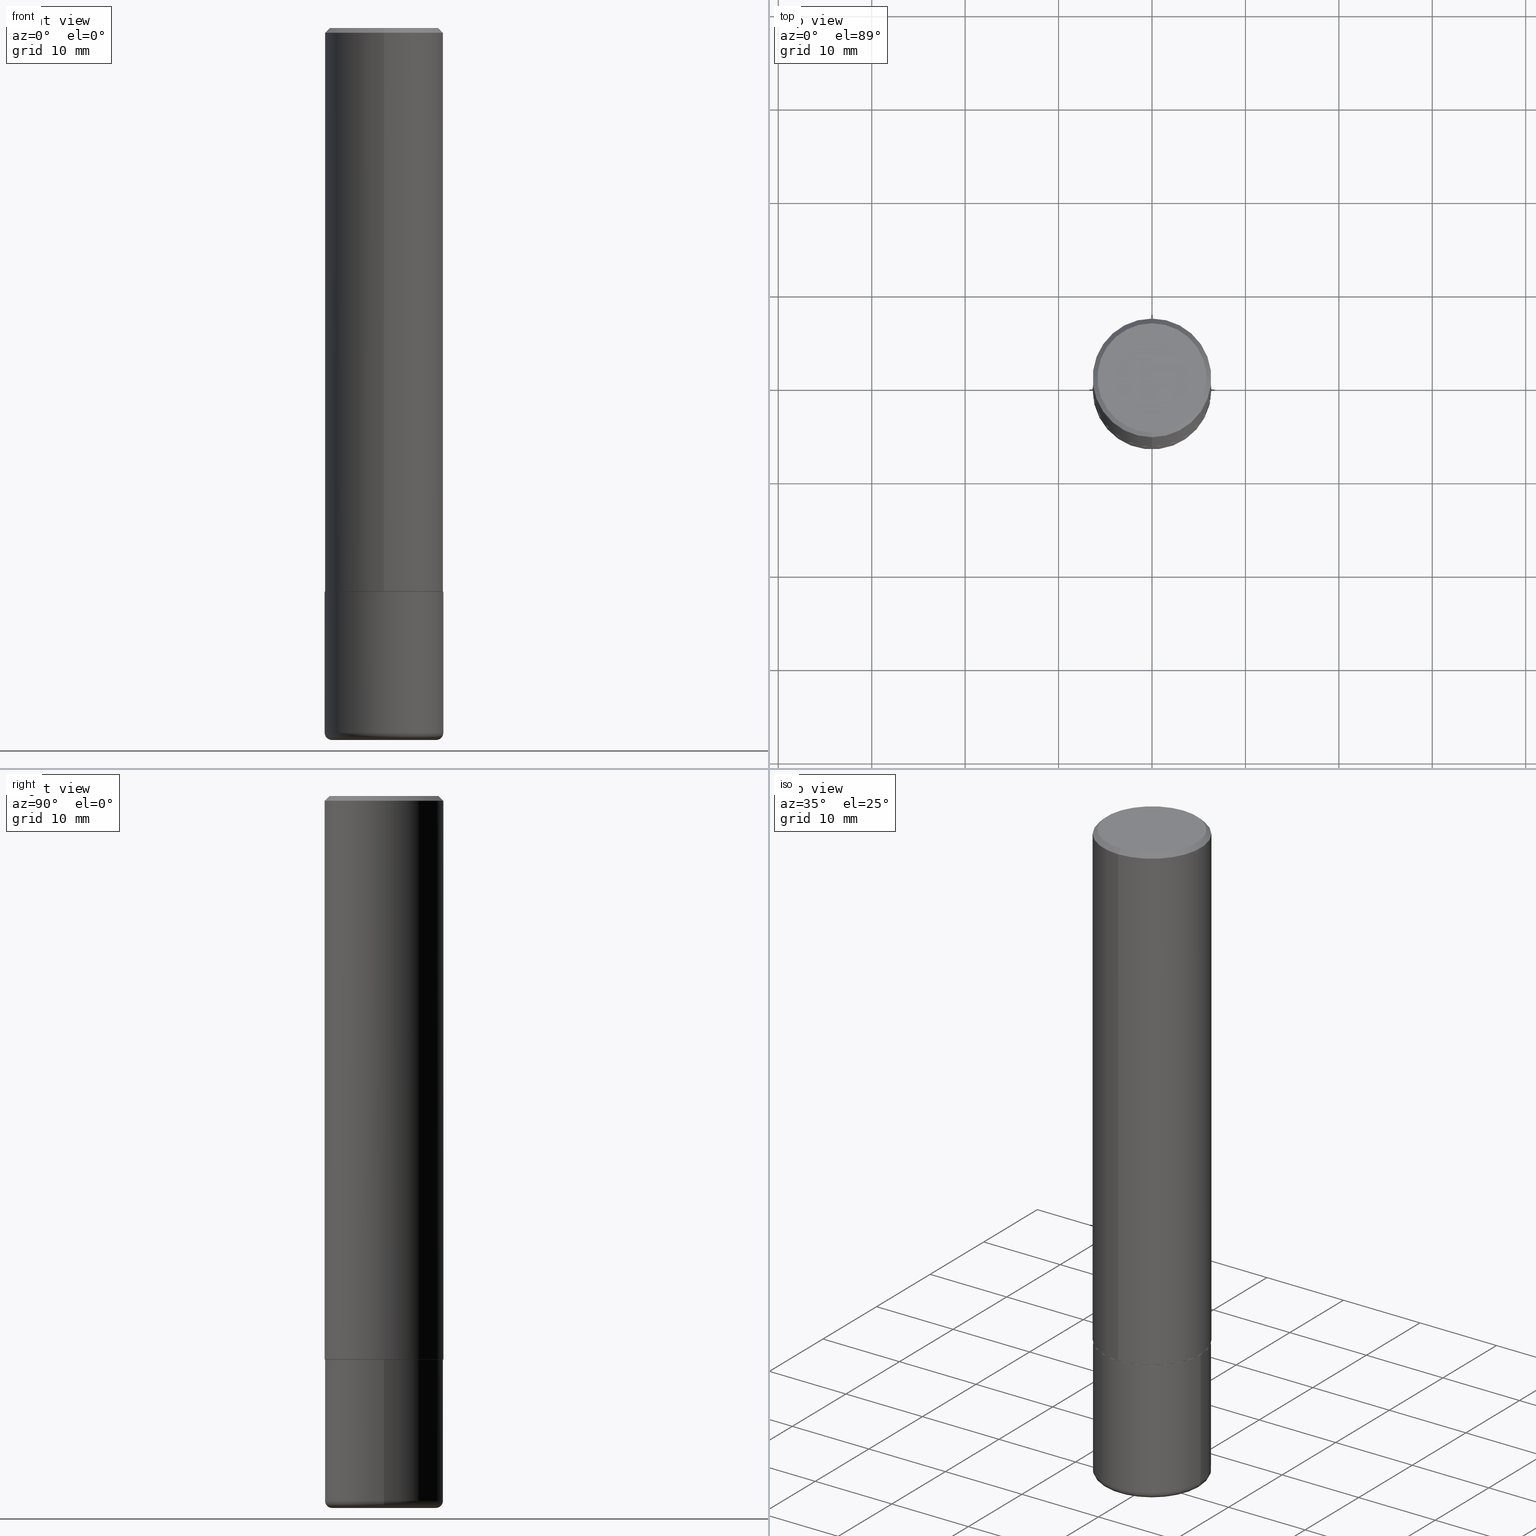
[diagram: canonical four-view strip — front | top / right | iso, engineering-drawing reading convention]
A machine part, canonical four-view strip (front | top / right | iso — engineering-drawing reading convention). The complete STEP part file that produces these views, byte-faithful:
ISO-10303-21;
HEADER;
FILE_DESCRIPTION (( 'STEP AP203' ),
    '1' );
FILE_NAME ('37026.STEP',
    '2024-03-01T18:51:01',
    ( '' ),
    ( '' ),
    'SwSTEP 2.0',
    'SolidWorks 2023',
    '' );
FILE_SCHEMA (( 'CONFIG_CONTROL_DESIGN' ));
ENDSEC;

DATA;
#1 = ORIENTED_EDGE ( 'NONE', *, *, #298, .T. ) ;
#2 = LOCAL_TIME ( 13, 51, 1.000000000000000000, #154 ) ;
#3 = DIRECTION ( 'NONE',  ( -2.445468806185136597E-29, 3.491481338843145583E-15, 1.000000000000000000 ) ) ;
#4 = AXIS2_PLACEMENT_3D ( 'NONE', #239, #10, #328 ) ;
#5 = CARTESIAN_POINT ( 'NONE',  ( -1.646519519465166573E-15, -0.2299999999999998712, 9.266556627535495054E-16 ) ) ;
#6 = CARTESIAN_POINT ( 'NONE',  ( 0.2200000000000000011, -1.190595136545512292E-14, -2.970000000000000195 ) ) ;
#7 = FACE_OUTER_BOUND ( 'NONE', #274, .T. ) ;
#8 = CLOSED_SHELL ( 'NONE', ( #9, #221, #391, #344, #84, #88, #401, #332 ) ) ;
#9 = ADVANCED_FACE ( 'NONE', ( #68 ), #166, .T. ) ;
#10 = DIRECTION ( 'NONE',  ( -2.445468806185136597E-29, 3.491481338843145583E-15, 1.000000000000000000 ) ) ;
#11 = CARTESIAN_POINT ( 'NONE',  ( 0.000000000000000000, 0.000000000000000000, 0.000000000000000000 ) ) ;
#12 = ADVANCED_FACE ( 'NONE', ( #231 ), #260, .F. ) ;
#13 = AXIS2_PLACEMENT_3D ( 'NONE', #388, #104, #251 ) ;
#14 = CIRCLE ( 'NONE', #40, 0.2500000000000002776 ) ;
#15 = APPROVAL ( #232, 'UNSPECIFIED' ) ;
#16 = ORIENTED_EDGE ( 'NONE', *, *, #241, .F. ) ;
#17 = ORIENTED_EDGE ( 'NONE', *, *, #385, .F. ) ;
#18 = ORIENTED_EDGE ( 'NONE', *, *, #271, .F. ) ;
#19 = DATE_AND_TIME ( #59, #48 ) ;
#20 = SHAPE_DEFINITION_REPRESENTATION ( #156, #150 ) ;
#21 = AXIS2_PLACEMENT_3D ( 'NONE', #259, #291, #313 ) ;
#22 = ORIENTED_EDGE ( 'NONE', *, *, #352, .T. ) ;
#23 = COORDINATED_UNIVERSAL_TIME_OFFSET ( 5, 0, .BEHIND. ) ;
#24 = CARTESIAN_POINT ( 'NONE',  ( -1.745740669421567467E-15, -0.2500000000000001110, 8.727769067796535567E-16 ) ) ;
#25 = ORIENTED_EDGE ( 'NONE', *, *, #119, .F. ) ;
#26 = APPROVAL_PERSON_ORGANIZATION ( #132, #15, #217 ) ;
#27 = FACE_OUTER_BOUND ( 'NONE', #357, .T. ) ;
#28 = CARTESIAN_POINT ( 'NONE',  ( 5.807988414689700538E-29, -8.292268179752471696E-15, -2.375000000000000000 ) ) ;
#29 = CARTESIAN_POINT ( 'NONE',  ( 7.263042354369856275E-29, -1.036969957636414298E-14, -2.970000000000000195 ) ) ;
#30 = ORIENTED_EDGE ( 'NONE', *, *, #69, .F. ) ;
#31 = CARTESIAN_POINT ( 'NONE',  ( 4.891459535375212615E-31, -6.982215254237243146E-17, -0.02000000000000005593 ) ) ;
#32 = CARTESIAN_POINT ( 'NONE',  ( 5.808608198258048994E-29, -8.291380614406705732E-15, -2.375000000000000000 ) ) ;
#33 = CARTESIAN_POINT ( 'NONE',  ( 5.808608198258048994E-29, -8.291380614406705732E-15, -2.375000000000000000 ) ) ;
#34 = CYLINDRICAL_SURFACE ( 'NONE', #255, 0.2500000000000001110 ) ;
#35 = EDGE_CURVE ( 'NONE', #333, #292, #278, .T. ) ;
#36 = DIRECTION ( 'NONE',  ( -6.982962677686266711E-15, -1.000000000000000000, 3.491107627118612649E-15 ) ) ;
#37 = AXIS2_PLACEMENT_3D ( 'NONE', #320, #67, #351 ) ;
#38 = DIRECTION ( 'NONE',  ( -2.445729767687599458E-29, 3.491107627118612255E-15, 1.000000000000000000 ) ) ;
#39 = DIRECTION ( 'NONE',  ( -6.982962677686265922E-15, -1.000000000000000000, 3.278217592397112312E-15 ) ) ;
#40 = AXIS2_PLACEMENT_3D ( 'NONE', #329, #302, #112 ) ;
#41 = AXIS2_PLACEMENT_3D ( 'NONE', #230, #137, #60 ) ;
#42 = AXIS2_PLACEMENT_3D ( 'NONE', #268, #73, #361 ) ;
#43 = ADVANCED_FACE ( 'NONE', ( #359 ), #82, .T. ) ;
#44 = EDGE_LOOP ( 'NONE', ( #339, #47 ) ) ;
#45 = AXIS2_PLACEMENT_3D ( 'NONE', #199, #105, #192 ) ;
#46 = EDGE_CURVE ( 'NONE', #163, #184, #53, .T. ) ;
#47 = ORIENTED_EDGE ( 'NONE', *, *, #175, .F. ) ;
#48 = LOCAL_TIME ( 13, 51, 1.000000000000000000, #225 ) ;
#49 = VERTEX_POINT ( 'NONE', #5 ) ;
#50 = ORIENTED_EDGE ( 'NONE', *, *, #245, .T. ) ;
#51 = COORDINATED_UNIVERSAL_TIME_OFFSET ( 5, 0, .BEHIND. ) ;
#52 = DIRECTION ( 'NONE',  ( 1.000000000000000000, -6.982962677686269866E-15, 0.000000000000000000 ) ) ;
#53 = CIRCLE ( 'NONE', #212, 0.2200000000000000011 ) ;
#54 = EDGE_LOOP ( 'NONE', ( #216, #124, #86, #252 ) ) ;
#55 = DIRECTION ( 'NONE',  ( 0.000000000000000000, 0.000000000000000000, 1.000000000000000000 ) ) ;
#56 = CARTESIAN_POINT ( 'NONE',  ( 7.336406418555408669E-29, -1.047444401652943478E-14, -2.999999999999999556 ) ) ;
#57 = DIRECTION ( 'NONE',  ( -2.445468806185136597E-29, 3.491481338843145583E-15, 1.000000000000000000 ) ) ;
#58 = VECTOR ( 'NONE', #76, 39.37007874015748143 ) ;
#59 = CALENDAR_DATE ( 2024, 1, 3 ) ;
#60 = DIRECTION ( 'NONE',  ( -6.982962677686266711E-15, -1.000000000000000000, 3.491107627118612649E-15 ) ) ;
#61 = CARTESIAN_POINT ( 'NONE',  ( -1.738757706743822090E-15, -0.2490000000000082980, -2.374999999999999556 ) ) ;
#62 = APPLICATION_PROTOCOL_DEFINITION ( 'international standard', 'config_control_design', 1994, #327 ) ;
#63 = CARTESIAN_POINT ( 'NONE',  ( -1.715124499442882299E-15, -0.2500000000000000555, -0.01999999999999918510 ) ) ;
#64 = CARTESIAN_POINT ( 'NONE',  ( 7.263042354369856275E-29, -1.036969957636414298E-14, -2.970000000000000195 ) ) ;
#65 = CIRCLE ( 'NONE', #203, 0.02999999999999971440 ) ;
#66 = CARTESIAN_POINT ( 'NONE',  ( 0.000000000000000000, 0.000000000000000000, 0.000000000000000000 ) ) ;
#67 = DIRECTION ( 'NONE',  ( 2.445729767687598898E-29, -3.491107627118612649E-15, -1.000000000000000000 ) ) ;
#68 = FACE_OUTER_BOUND ( 'NONE', #307, .T. ) ;
#69 = EDGE_CURVE ( 'NONE', #184, #292, #65, .T. ) ;
#70 = FACE_OUTER_BOUND ( 'NONE', #213, .T. ) ;
#71 = CARTESIAN_POINT ( 'NONE',  ( 4.891459535375212615E-31, -6.982215254237243146E-17, -0.02000000000000005593 ) ) ;
#72 = EDGE_CURVE ( 'NONE', #89, #149, #266, .T. ) ;
#73 = DIRECTION ( 'NONE',  ( -2.445729767687598898E-29, 3.491107627118612649E-15, 1.000000000000000000 ) ) ;
#74 = CARTESIAN_POINT ( 'NONE',  ( -0.2500000000000000000, -7.554627038658056086E-15, -2.375000000000000000 ) ) ;
#75 = AXIS2_PLACEMENT_3D ( 'NONE', #71, #318, #299 ) ;
#76 = DIRECTION ( 'NONE',  ( -2.445468806185136877E-29, 3.491481338843145188E-15, 1.000000000000000000 ) ) ;
#77 = ADVANCED_FACE ( 'NONE', ( #99 ), #415, .T. ) ;
#78 = DIRECTION ( 'NONE',  ( -4.851104656540957964E-15, -0.7071067811865491270, -0.7071067811865459074 ) ) ;
#79 =( LENGTH_UNIT ( ) NAMED_UNIT ( * ) SI_UNIT ( $, .METRE. ) );
#80 =( NAMED_UNIT ( * ) PLANE_ANGLE_UNIT ( ) SI_UNIT ( $, .RADIAN. ) );
#81 = CARTESIAN_POINT ( 'NONE',  ( 0.2500000000000000000, -1.003800884917403837E-14, -2.375000000000000000 ) ) ;
#82 = TOROIDAL_SURFACE ( 'NONE', #130, 0.2200000000000000011, 0.02999999999999969705 ) ;
#83 = CARTESIAN_POINT ( 'NONE',  ( 5.807988414689700538E-29, -8.292268179752471696E-15, -2.375000000000000000 ) ) ;
#84 = ADVANCED_FACE ( 'NONE', ( #7 ), #34, .T. ) ;
#85 = ORIENTED_EDGE ( 'NONE', *, *, #398, .T. ) ;
#86 = ORIENTED_EDGE ( 'NONE', *, *, #35, .F. ) ;
#87 = AXIS2_PLACEMENT_3D ( 'NONE', #32, #228, #386 ) ;
#88 = ADVANCED_FACE ( 'NONE', ( #346 ), #362, .T. ) ;
#89 = VERTEX_POINT ( 'NONE', #61 ) ;
#90 = ORIENTED_EDGE ( 'NONE', *, *, #72, .T. ) ;
#91 = PERSON_AND_ORGANIZATION ( #108, #135 ) ;
#92 = PRODUCT ( '37026', '37026', '', ( #387 ) ) ;
#93 = CYLINDRICAL_SURFACE ( 'NONE', #41, 0.2500000000000001110 ) ;
#94 = ORIENTED_EDGE ( 'NONE', *, *, #322, .T. ) ;
#95 = AXIS2_PLACEMENT_3D ( 'NONE', #296, #114, #393 ) ;
#96 = PERSON_AND_ORGANIZATION ( #108, #135 ) ;
#97 = CARTESIAN_POINT ( 'NONE',  ( 1.675911042644703577E-15, 0.2299999999999998712, -6.792538457210110194E-16 ) ) ;
#98 = VECTOR ( 'NONE', #281, 39.37007874015748143 ) ;
#99 = FACE_OUTER_BOUND ( 'NONE', #413, .T. ) ;
#100 = PRODUCT_DEFINITION ( 'UNKNOWN', '', #270, #127 ) ;
#101 = CARTESIAN_POINT ( 'NONE',  ( 0.2200000000000000011, -1.201069580562041471E-14, -2.999999999999999556 ) ) ;
#102 = DIRECTION ( 'NONE',  ( -6.982962677686265133E-15, -1.000000000000000000, 3.291383124896702687E-15 ) ) ;
#103 = SECURITY_CLASSIFICATION_LEVEL ( 'unclassified' ) ;
#104 = DIRECTION ( 'NONE',  ( 2.438088387897960049E-29, -3.491481338843145188E-15, -1.000000000000000000 ) ) ;
#105 = DIRECTION ( 'NONE',  ( -2.445468806185136597E-29, 3.491481338843145583E-15, 1.000000000000000000 ) ) ;
#106 = PERSON_AND_ORGANIZATION ( #108, #135 ) ;
#107 = CARTESIAN_POINT ( 'NONE',  ( -0.2499999999999998612, -8.593342736963892519E-15, -2.970000000000000195 ) ) ;
#108 = PERSON ( 'UNSPECIFIED', 'UNSPECIFIED', 'UNSPECIFIED', ('UNSPECIFIED'), ('UNSPECIFIED'), ('UNSPECIFIED') ) ;
#109 = DIRECTION ( 'NONE',  ( -2.445729767687599458E-29, 3.491107627118612255E-15, 1.000000000000000000 ) ) ;
#110 = DIRECTION ( 'NONE',  ( -1.000000000000000000, 7.105427357600993970E-15, 0.000000000000000000 ) ) ;
#111 = EDGE_CURVE ( 'NONE', #49, #312, #183, .T. ) ;
#112 = DIRECTION ( 'NONE',  ( -6.982962677686265922E-15, -1.000000000000000000, 3.278217592397112312E-15 ) ) ;
#113 = CARTESIAN_POINT ( 'NONE',  ( -1.715124499442882299E-15, -0.2500000000000000555, -0.01999999999999918510 ) ) ;
#114 = DIRECTION ( 'NONE',  ( 2.445729767687599458E-29, -3.491107627118612255E-15, -1.000000000000000000 ) ) ;
#115 = PLANE ( 'NONE',  #42 ) ;
#116 = EDGE_CURVE ( 'NONE', #201, #235, #178, .T. ) ;
#117 = AXIS2_PLACEMENT_3D ( 'NONE', #263, #349, #131 ) ;
#118 = VERTEX_POINT ( 'NONE', #81 ) ;
#119 = EDGE_CURVE ( 'NONE', #120, #118, #343, .T. ) ;
#120 = VERTEX_POINT ( 'NONE', #74 ) ;
#121 = AXIS2_PLACEMENT_3D ( 'NONE', #315, #257, #102 ) ;
#122 = ORIENTED_EDGE ( 'NONE', *, *, #365, .F. ) ;
#123 = CC_DESIGN_APPROVAL ( #179, ( #185 ) ) ;
#124 = ORIENTED_EDGE ( 'NONE', *, *, #69, .T. ) ;
#125 = APPROVAL_DATE_TIME ( #128, #15 ) ;
#126 = CARTESIAN_POINT ( 'NONE',  ( 1.776356839400251254E-15, 0.2500000000000001110, -8.727769067796535567E-16 ) ) ;
#127 = DESIGN_CONTEXT ( 'detailed design', #238, 'design' ) ;
#128 = DATE_AND_TIME ( #283, #267 ) ;
#129 = LINE ( 'NONE', #191, #331 ) ;
#130 = AXIS2_PLACEMENT_3D ( 'NONE', #64, #197, #321 ) ;
#131 = DIRECTION ( 'NONE',  ( 1.000000000000000000, -6.982962677686266711E-15, 4.876176775795935793E-29 ) ) ;
#132 = PERSON_AND_ORGANIZATION ( #108, #135 ) ;
#133 = CARTESIAN_POINT ( 'NONE',  ( 5.808608198258048994E-29, -8.291380614406705732E-15, -2.375000000000000000 ) ) ;
#134 = EDGE_LOOP ( 'NONE', ( #392, #94, #90, #17 ) ) ;
#135 = ORGANIZATION ( 'UNSPECIFIED', 'UNSPECIFIED', '' ) ;
#136 = APPLICATION_PROTOCOL_DEFINITION ( 'international standard', 'config_control_design', 1994, #238 ) ;
#137 = DIRECTION ( 'NONE',  ( -2.445729767687599458E-29, 3.491107627118612255E-15, 1.000000000000000000 ) ) ;
#138 = DIRECTION ( 'NONE',  ( -4.937700262165053702E-15, -0.7071067811866175168, 0.7071067811864775177 ) ) ;
#139 = DIRECTION ( 'NONE',  ( -2.445729767687599458E-29, 3.491107627118612255E-15, 1.000000000000000000 ) ) ;
#140 = DIRECTION ( 'NONE',  ( -6.982962677686265922E-15, -1.000000000000000000, 3.491107627118611860E-15 ) ) ;
#141 = CIRCLE ( 'NONE', #367, 0.2489999999999999991 ) ;
#142 = CC_DESIGN_PERSON_AND_ORGANIZATION_ASSIGNMENT ( #91, #254, ( #100 ) ) ;
#143 = CARTESIAN_POINT ( 'NONE',  ( -3.025389942482403152E-45, 4.318531852026494479E-31, 1.237009085162692923E-16 ) ) ;
#144 = CIRCLE ( 'NONE', #146, 0.2500000000000002776 ) ;
#145 = DIRECTION ( 'NONE',  ( 1.000000000000000000, -6.982962677686266711E-15, 4.876176775795935793E-29 ) ) ;
#146 = AXIS2_PLACEMENT_3D ( 'NONE', #174, #139, #39 ) ;
#147 = CARTESIAN_POINT ( 'NONE',  ( 1.772804125721508731E-15, 0.2489999999999917002, -2.375000000000000888 ) ) ;
#148 = EDGE_CURVE ( 'NONE', #49, #235, #204, .T. ) ;
#149 = VERTEX_POINT ( 'NONE', #276 ) ;
#150 = ADVANCED_BREP_SHAPE_REPRESENTATION ( '37026', ( #206, #207, #214 ), #180 ) ;
#151 = VECTOR ( 'NONE', #168, 39.37007874015748143 ) ;
#152 = ORIENTED_EDGE ( 'NONE', *, *, #241, .T. ) ;
#153 = VERTEX_POINT ( 'NONE', #147 ) ;
#154 = COORDINATED_UNIVERSAL_TIME_OFFSET ( 5, 0, .BEHIND. ) ;
#155 = CIRCLE ( 'NONE', #400, 0.2489999999999999991 ) ;
#156 = PRODUCT_DEFINITION_SHAPE ( 'NONE', 'NONE',  #100 ) ;
#157 = EDGE_LOOP ( 'NONE', ( #277, #1, #249, #25 ) ) ;
#158 = DIRECTION ( 'NONE',  ( 1.000000000000000000, -6.982962677686270655E-15, 0.000000000000000000 ) ) ;
#159 = CC_DESIGN_PERSON_AND_ORGANIZATION_ASSIGNMENT ( #96, #229, ( #185 ) ) ;
#160 = ORIENTED_EDGE ( 'NONE', *, *, #394, .T. ) ;
#161 = DIRECTION ( 'NONE',  ( 1.000000000000000000, 0.000000000000000000, 0.000000000000000000 ) ) ;
#162 = LINE ( 'NONE', #396, #58 ) ;
#163 = VERTEX_POINT ( 'NONE', #101 ) ;
#164 = DATE_TIME_ROLE ( 'creation_date' ) ;
#165 = PLANE ( 'NONE',  #13 ) ;
#166 = CONICAL_SURFACE ( 'NONE', #87, 0.2489999999999999991, 0.7853981633975507526 ) ;
#167 = ORIENTED_EDGE ( 'NONE', *, *, #385, .T. ) ;
#168 = DIRECTION ( 'NONE',  ( -2.445729767687599458E-29, 3.491107627118612649E-15, 1.000000000000000000 ) ) ;
#169 = DIRECTION ( 'NONE',  ( 1.000000000000000000, -6.982962677686270655E-15, 0.000000000000000000 ) ) ;
#170 = DIRECTION ( 'NONE',  ( 5.024295867788576727E-15, 0.7071067811866224018, 0.7071067811864726327 ) ) ;
#171 = CARTESIAN_POINT ( 'NONE',  ( -3.025389942482403152E-45, 4.318531852026494479E-31, 1.237009085162692923E-16 ) ) ;
#172 = DIRECTION ( 'NONE',  ( -6.982962677686265922E-15, -1.000000000000000000, 3.491107627118611860E-15 ) ) ;
#173 = AXIS2_PLACEMENT_3D ( 'NONE', #143, #38, #172 ) ;
#174 = CARTESIAN_POINT ( 'NONE',  ( 5.806162468490361962E-29, -8.287889506779587323E-15, -2.374000000000000110 ) ) ;
#175 = EDGE_CURVE ( 'NONE', #184, #163, #406, .T. ) ;
#176 = CC_DESIGN_APPROVAL ( #15, ( #100 ) ) ;
#177 = DIRECTION ( 'NONE',  ( -2.445468806185136877E-29, 3.491481338843145188E-15, 1.000000000000000000 ) ) ;
#178 = CIRCLE ( 'NONE', #75, 0.2500000000000000000 ) ;
#179 = APPROVAL ( #374, 'UNSPECIFIED' ) ;
#180 =( GEOMETRIC_REPRESENTATION_CONTEXT ( 3 ) GLOBAL_UNCERTAINTY_ASSIGNED_CONTEXT ( ( #410 ) ) GLOBAL_UNIT_ASSIGNED_CONTEXT ( ( #269, #80, #330 ) ) REPRESENTATION_CONTEXT ( 'NONE', 'WORKASPACE' ) );
#181 = DIRECTION ( 'NONE',  ( 1.000000000000000000, -6.982962677686266711E-15, 0.000000000000000000 ) ) ;
#182 = ORIENTED_EDGE ( 'NONE', *, *, #376, .T. ) ;
#183 = CIRCLE ( 'NONE', #319, 0.2299999999999998712 ) ;
#184 = VERTEX_POINT ( 'NONE', #262 ) ;
#185 = SECURITY_CLASSIFICATION ( '', '', #103 ) ;
#186 = ORIENTED_EDGE ( 'NONE', *, *, #314, .T. ) ;
#187 = EDGE_LOOP ( 'NONE', ( #182, #370 ) ) ;
#188 = EDGE_CURVE ( 'NONE', #312, #201, #129, .T. ) ;
#189 = DIRECTION ( 'NONE',  ( -2.445729767687599458E-29, 3.491107627118612255E-15, 1.000000000000000000 ) ) ;
#190 = EDGE_LOOP ( 'NONE', ( #30, #377, #50, #210 ) ) ;
#191 = CARTESIAN_POINT ( 'NONE',  ( 1.745740669421566875E-15, 0.2499999999999999167, -0.02000000000000092676 ) ) ;
#192 = DIRECTION ( 'NONE',  ( 1.000000000000000000, -6.982962677686270655E-15, 0.000000000000000000 ) ) ;
#193 = FACE_OUTER_BOUND ( 'NONE', #44, .T. ) ;
#194 = DIRECTION ( 'NONE',  ( -2.445729767687599458E-29, 3.491107627118612255E-15, 1.000000000000000000 ) ) ;
#195 = PLANE ( 'NONE',  #37 ) ;
#196 = CIRCLE ( 'NONE', #223, 0.02999999999999971440 ) ;
#197 = DIRECTION ( 'NONE',  ( -2.445468806185136597E-29, 3.491481338843145583E-15, 1.000000000000000000 ) ) ;
#198 = DIRECTION ( 'NONE',  ( 6.982962677686265922E-15, 1.000000000000000000, -3.483106191921935554E-15 ) ) ;
#199 = CARTESIAN_POINT ( 'NONE',  ( 7.263042354369856275E-29, -1.036969957636414298E-14, -2.970000000000000195 ) ) ;
#200 = LINE ( 'NONE', #205, #345 ) ;
#201 = VERTEX_POINT ( 'NONE', #317 ) ;
#202 = PRODUCT_RELATED_PRODUCT_CATEGORY ( 'detail', '', ( #92 ) ) ;
#203 = AXIS2_PLACEMENT_3D ( 'NONE', #383, #380, #110 ) ;
#204 = LINE ( 'NONE', #113, #240 ) ;
#205 = CARTESIAN_POINT ( 'NONE',  ( 0.2500000000000000000, -1.745740669421566678E-15, 1.219044193948983948E-29 ) ) ;
#206 = MANIFOLD_SOLID_BREP ( 'Body-Move/Copy2[1]', #208 ) ;
#207 = MANIFOLD_SOLID_BREP ( 'Body-Move/Copy2[2]', #8 ) ;
#208 = CLOSED_SHELL ( 'NONE', ( #77, #43, #12, #417, #226, #265 ) ) ;
#209 = DIRECTION ( 'NONE',  ( -2.445468806185136597E-29, 3.491481338843145583E-15, 1.000000000000000000 ) ) ;
#210 = ORIENTED_EDGE ( 'NONE', *, *, #298, .F. ) ;
#211 = ORIENTED_EDGE ( 'NONE', *, *, #398, .F. ) ;
#212 = AXIS2_PLACEMENT_3D ( 'NONE', #353, #57, #169 ) ;
#213 = EDGE_LOOP ( 'NONE', ( #16, #342 ) ) ;
#214 = AXIS2_PLACEMENT_3D ( 'NONE', #66, #55, #161 ) ;
#215 = APPROVAL ( #286, 'UNSPECIFIED' ) ;
#216 = ORIENTED_EDGE ( 'NONE', *, *, #46, .T. ) ;
#217 = APPROVAL_ROLE ( '' ) ;
#218 = DIRECTION ( 'NONE',  ( -2.445468806185136597E-29, 3.491481338843145583E-15, 1.000000000000000000 ) ) ;
#219 = ORIENTED_EDGE ( 'NONE', *, *, #394, .F. ) ;
#220 = APPROVAL_ROLE ( '' ) ;
#221 = ADVANCED_FACE ( 'NONE', ( #323 ), #93, .T. ) ;
#222 = DIRECTION ( 'NONE',  ( -6.982962677686265133E-15, -1.000000000000000000, 3.291383124896702687E-15 ) ) ;
#223 = AXIS2_PLACEMENT_3D ( 'NONE', #6, #341, #52 ) ;
#224 = CARTESIAN_POINT ( 'NONE',  ( 0.000000000000000000, 0.000000000000000000, 0.000000000000000000 ) ) ;
#225 = COORDINATED_UNIVERSAL_TIME_OFFSET ( 5, 0, .BEHIND. ) ;
#226 = ADVANCED_FACE ( 'NONE', ( #256 ), #397, .T. ) ;
#227 = DIRECTION ( 'NONE',  ( -2.445468806185136597E-29, 3.491481338843145583E-15, 1.000000000000000000 ) ) ;
#228 = DIRECTION ( 'NONE',  ( -2.445729767687599458E-29, 3.491107627118612255E-15, 1.000000000000000000 ) ) ;
#229 = PERSON_AND_ORGANIZATION_ROLE ( 'classification_officer' ) ;
#230 = CARTESIAN_POINT ( 'NONE',  ( 0.000000000000000000, 0.000000000000000000, 0.000000000000000000 ) ) ;
#231 = FACE_OUTER_BOUND ( 'NONE', #187, .T. ) ;
#232 = APPROVAL_STATUS ( 'not_yet_approved' ) ;
#233 = DIRECTION ( 'NONE',  ( -2.445729767687599458E-29, 3.491107627118612255E-15, 1.000000000000000000 ) ) ;
#234 = VECTOR ( 'NONE', #138, 39.37007874015748143 ) ;
#235 = VERTEX_POINT ( 'NONE', #63 ) ;
#236 = ORIENTED_EDGE ( 'NONE', *, *, #365, .T. ) ;
#237 = CC_DESIGN_PERSON_AND_ORGANIZATION_ASSIGNMENT ( #261, #258, ( #270 ) ) ;
#238 = APPLICATION_CONTEXT ( 'configuration controlled 3d designs of mechanical parts and assemblies' ) ;
#239 = CARTESIAN_POINT ( 'NONE',  ( 5.807988414689700538E-29, -8.292268179752471696E-15, -2.375000000000000000 ) ) ;
#240 = VECTOR ( 'NONE', #78, 39.37007874015748143 ) ;
#241 = EDGE_CURVE ( 'NONE', #89, #153, #155, .T. ) ;
#242 = APPROVAL_PERSON_ORGANIZATION ( #250, #179, #220 ) ;
#243 = DIRECTION ( 'NONE',  ( -2.445468806185136597E-29, 3.491481338843145583E-15, 1.000000000000000000 ) ) ;
#244 = ORIENTED_EDGE ( 'NONE', *, *, #271, .T. ) ;
#245 = EDGE_CURVE ( 'NONE', #163, #333, #196, .T. ) ;
#246 = ORIENTED_EDGE ( 'NONE', *, *, #116, .T. ) ;
#247 = ORIENTED_EDGE ( 'NONE', *, *, #111, .T. ) ;
#248 = CC_DESIGN_DATE_AND_TIME_ASSIGNMENT ( #19, #164, ( #100 ) ) ;
#249 = ORIENTED_EDGE ( 'NONE', *, *, #409, .T. ) ;
#250 = PERSON_AND_ORGANIZATION ( #108, #135 ) ;
#251 = DIRECTION ( 'NONE',  ( -1.000000000000000000, 6.982962677686265922E-15, -4.876176775795935793E-29 ) ) ;
#252 = ORIENTED_EDGE ( 'NONE', *, *, #245, .F. ) ;
#253 = DATE_AND_TIME ( #340, #324 ) ;
#254 = PERSON_AND_ORGANIZATION_ROLE ( 'creator' ) ;
#255 = AXIS2_PLACEMENT_3D ( 'NONE', #224, #109, #36 ) ;
#256 = FACE_OUTER_BOUND ( 'NONE', #190, .T. ) ;
#257 = DIRECTION ( 'NONE',  ( -2.445729767687599458E-29, 3.491107627118612255E-15, 1.000000000000000000 ) ) ;
#258 = PERSON_AND_ORGANIZATION_ROLE ( 'design_supplier' ) ;
#259 = CARTESIAN_POINT ( 'NONE',  ( 4.891459535375212615E-31, -6.982215254237243146E-17, -0.02000000000000005593 ) ) ;
#260 = PLANE ( 'NONE',  #303 ) ;
#261 = PERSON_AND_ORGANIZATION ( #108, #135 ) ;
#262 = CARTESIAN_POINT ( 'NONE',  ( -0.2200000000000000011, -8.752296367410555115E-15, -2.999999999999999556 ) ) ;
#263 = CARTESIAN_POINT ( 'NONE',  ( 0.000000000000000000, 0.000000000000000000, 0.000000000000000000 ) ) ;
#264 = CIRCLE ( 'NONE', #310, 0.2500000000000000000 ) ;
#265 = ADVANCED_FACE ( 'NONE', ( #193 ), #165, .T. ) ;
#266 = LINE ( 'NONE', #285, #234 ) ;
#267 = LOCAL_TIME ( 13, 51, 1.000000000000000000, #23 ) ;
#268 = CARTESIAN_POINT ( 'NONE',  ( 5.808608198258048994E-29, -8.291380614406705732E-15, -2.375000000000000000 ) ) ;
#269 =( CONVERSION_BASED_UNIT ( 'INCH', #364 ) LENGTH_UNIT ( ) NAMED_UNIT ( #366 ) );
#270 = PRODUCT_DEFINITION_FORMATION_WITH_SPECIFIED_SOURCE ( 'ANY', '', #92, .NOT_KNOWN. ) ;
#271 = EDGE_CURVE ( 'NONE', #235, #201, #390, .T. ) ;
#272 = APPROVAL_DATE_TIME ( #295, #179 ) ;
#273 = ORIENTED_EDGE ( 'NONE', *, *, #352, .F. ) ;
#274 = EDGE_LOOP ( 'NONE', ( #122, #167, #22, #294 ) ) ;
#275 = CC_DESIGN_PERSON_AND_ORGANIZATION_ASSIGNMENT ( #290, #381, ( #92 ) ) ;
#276 = CARTESIAN_POINT ( 'NONE',  ( -1.745740669421510471E-15, -0.2500000000000085487, -2.373999999999999222 ) ) ;
#277 = ORIENTED_EDGE ( 'NONE', *, *, #368, .F. ) ;
#278 = CIRCLE ( 'NONE', #45, 0.2500000000000000000 ) ;
#279 = DATE_AND_TIME ( #350, #2 ) ;
#280 = ORIENTED_EDGE ( 'NONE', *, *, #409, .F. ) ;
#281 = DIRECTION ( 'NONE',  ( -2.445729767687599458E-29, 3.491107627118612649E-15, 1.000000000000000000 ) ) ;
#282 = EDGE_LOOP ( 'NONE', ( #160, #236, #18, #273 ) ) ;
#283 = CALENDAR_DATE ( 2024, 1, 3 ) ;
#284 = FACE_OUTER_BOUND ( 'NONE', #337, .T. ) ;
#285 = CARTESIAN_POINT ( 'NONE',  ( -1.738757706743822090E-15, -0.2490000000000082980, -2.374999999999999556 ) ) ;
#286 = APPROVAL_STATUS ( 'not_yet_approved' ) ;
#287 = AXIS2_PLACEMENT_3D ( 'NONE', #56, #227, #158 ) ;
#288 = LINE ( 'NONE', #418, #335 ) ;
#289 = ORIENTED_EDGE ( 'NONE', *, *, #148, .F. ) ;
#290 = PERSON_AND_ORGANIZATION ( #108, #135 ) ;
#291 = DIRECTION ( 'NONE',  ( -2.445729767687599458E-29, 3.491107627118612255E-15, 1.000000000000000000 ) ) ;
#292 = VERTEX_POINT ( 'NONE', #107 ) ;
#293 = CARTESIAN_POINT ( 'NONE',  ( 7.263042354369856275E-29, -1.036969957636414298E-14, -2.970000000000000195 ) ) ;
#294 = ORIENTED_EDGE ( 'NONE', *, *, #116, .F. ) ;
#295 = DATE_AND_TIME ( #360, #399 ) ;
#296 = CARTESIAN_POINT ( 'NONE',  ( 4.891459535375212615E-31, -6.982215254237243146E-17, -0.02000000000000005593 ) ) ;
#297 = AXIS2_PLACEMENT_3D ( 'NONE', #293, #218, #375 ) ;
#298 = EDGE_CURVE ( 'NONE', #292, #333, #264, .T. ) ;
#299 = DIRECTION ( 'NONE',  ( -6.982962677686265922E-15, -1.000000000000000000, 3.483106191921935554E-15 ) ) ;
#300 = FACE_OUTER_BOUND ( 'NONE', #305, .T. ) ;
#301 = CYLINDRICAL_SURFACE ( 'NONE', #384, 0.2500000000000000000 ) ;
#302 = DIRECTION ( 'NONE',  ( -2.445729767687599458E-29, 3.491107627118612255E-15, 1.000000000000000000 ) ) ;
#303 = AXIS2_PLACEMENT_3D ( 'NONE', #28, #326, #389 ) ;
#304 = CC_DESIGN_PERSON_AND_ORGANIZATION_ASSIGNMENT ( #316, #378, ( #270 ) ) ;
#305 = EDGE_LOOP ( 'NONE', ( #309, #373, #244, #369 ) ) ;
#306 = ORIENTED_EDGE ( 'NONE', *, *, #72, .F. ) ;
#307 = EDGE_LOOP ( 'NONE', ( #152, #186, #219, #306 ) ) ;
#308 = APPROVAL_DATE_TIME ( #253, #215 ) ;
#309 = ORIENTED_EDGE ( 'NONE', *, *, #111, .F. ) ;
#310 = AXIS2_PLACEMENT_3D ( 'NONE', #29, #3, #348 ) ;
#311 = LINE ( 'NONE', #24, #98 ) ;
#312 = VERTEX_POINT ( 'NONE', #97 ) ;
#313 = DIRECTION ( 'NONE',  ( -6.982962677686265922E-15, -1.000000000000000000, 3.483106191921935554E-15 ) ) ;
#314 = EDGE_CURVE ( 'NONE', #153, #372, #288, .T. ) ;
#315 = CARTESIAN_POINT ( 'NONE',  ( 5.808608198258048994E-29, -8.291380614406705732E-15, -2.375000000000000000 ) ) ;
#316 = PERSON_AND_ORGANIZATION ( #108, #135 ) ;
#317 = CARTESIAN_POINT ( 'NONE',  ( 1.745740669421566875E-15, 0.2499999999999999167, -0.02000000000000092676 ) ) ;
#318 = DIRECTION ( 'NONE',  ( -2.445729767687599458E-29, 3.491107627118612255E-15, 1.000000000000000000 ) ) ;
#319 = AXIS2_PLACEMENT_3D ( 'NONE', #171, #194, #140 ) ;
#320 = CARTESIAN_POINT ( 'NONE',  ( 1.606081415867840278E-15, 0.2299999999999998712, -7.411042999791457395E-16 ) ) ;
#321 = DIRECTION ( 'NONE',  ( 1.000000000000000000, -6.982962677686262766E-15, 4.883557194083111780E-29 ) ) ;
#322 = EDGE_CURVE ( 'NONE', #153, #89, #141, .T. ) ;
#323 = FACE_OUTER_BOUND ( 'NONE', #282, .T. ) ;
#324 = LOCAL_TIME ( 13, 51, 1.000000000000000000, #347 ) ;
#325 = FACE_OUTER_BOUND ( 'NONE', #157, .T. ) ;
#326 = DIRECTION ( 'NONE',  ( 2.438088387897960049E-29, -3.491481338843145188E-15, -1.000000000000000000 ) ) ;
#327 = APPLICATION_CONTEXT ( 'configuration controlled 3d designs of mechanical parts and assemblies' ) ;
#328 = DIRECTION ( 'NONE',  ( 1.000000000000000000, -6.982962677686266711E-15, 0.000000000000000000 ) ) ;
#329 = CARTESIAN_POINT ( 'NONE',  ( 5.806162468490361962E-29, -8.287889506779587323E-15, -2.374000000000000110 ) ) ;
#330 =( NAMED_UNIT ( * ) SI_UNIT ( $, .STERADIAN. ) SOLID_ANGLE_UNIT ( ) );
#331 = VECTOR ( 'NONE', #382, 39.37007874015748143 ) ;
#332 = ADVANCED_FACE ( 'NONE', ( #27 ), #195, .F. ) ;
#333 = VERTEX_POINT ( 'NONE', #414 ) ;
#334 = CC_DESIGN_DATE_AND_TIME_ASSIGNMENT ( #279, #408, ( #185 ) ) ;
#335 = VECTOR ( 'NONE', #170, 39.37007874015748143 ) ;
#336 = ORIENTED_EDGE ( 'NONE', *, *, #188, .T. ) ;
#337 = EDGE_LOOP ( 'NONE', ( #289, #211, #336, #246 ) ) ;
#338 = CC_DESIGN_APPROVAL ( #215, ( #270 ) ) ;
#339 = ORIENTED_EDGE ( 'NONE', *, *, #46, .F. ) ;
#340 = CALENDAR_DATE ( 2024, 1, 3 ) ;
#341 = DIRECTION ( 'NONE',  ( -6.982962677686266711E-15, -1.000000000000000000, 3.491481338843145583E-15 ) ) ;
#342 = ORIENTED_EDGE ( 'NONE', *, *, #322, .F. ) ;
#343 = CIRCLE ( 'NONE', #416, 0.2500000000000000000 ) ;
#344 = ADVANCED_FACE ( 'NONE', ( #284 ), #356, .T. ) ;
#345 = VECTOR ( 'NONE', #177, 39.37007874015748143 ) ;
#346 = FACE_OUTER_BOUND ( 'NONE', #134, .T. ) ;
#347 = COORDINATED_UNIVERSAL_TIME_OFFSET ( 5, 0, .BEHIND. ) ;
#348 = DIRECTION ( 'NONE',  ( 1.000000000000000000, -6.982962677686270655E-15, 0.000000000000000000 ) ) ;
#349 = DIRECTION ( 'NONE',  ( -2.445468806185136597E-29, 3.491481338843145583E-15, 1.000000000000000000 ) ) ;
#350 = CALENDAR_DATE ( 2024, 1, 3 ) ;
#351 = DIRECTION ( 'NONE',  ( 6.982962677686265922E-15, 1.000000000000000000, -3.491107627118612649E-15 ) ) ;
#352 = EDGE_CURVE ( 'NONE', #149, #235, #311, .T. ) ;
#353 = CARTESIAN_POINT ( 'NONE',  ( 7.336406418555408669E-29, -1.047444401652943478E-14, -2.999999999999999556 ) ) ;
#354 = APPROVAL_ROLE ( '' ) ;
#355 = DIRECTION ( 'NONE',  ( -6.982962677686265133E-15, -1.000000000000000000, 3.291383124896702687E-15 ) ) ;
#356 = CONICAL_SURFACE ( 'NONE', #402, 0.2500000000000000000, 0.7853981633974471688 ) ;
#357 = EDGE_LOOP ( 'NONE', ( #85, #247 ) ) ;
#358 = CIRCLE ( 'NONE', #4, 0.2500000000000000000 ) ;
#359 = FACE_OUTER_BOUND ( 'NONE', #54, .T. ) ;
#360 = CALENDAR_DATE ( 2024, 1, 3 ) ;
#361 = DIRECTION ( 'NONE',  ( -6.982962677686265922E-15, -1.000000000000000000, 3.491107627118612649E-15 ) ) ;
#362 = CONICAL_SURFACE ( 'NONE', #121, 0.2489999999999999991, 0.7853981633975507526 ) ;
#363 = APPROVAL_PERSON_ORGANIZATION ( #106, #215, #354 ) ;
#364 = LENGTH_MEASURE_WITH_UNIT ( LENGTH_MEASURE( 0.02539999999999999897 ), #79 );
#365 = EDGE_CURVE ( 'NONE', #372, #201, #412, .T. ) ;
#366 = DIMENSIONAL_EXPONENTS ( 1.000000000000000000, 0.000000000000000000, 0.000000000000000000, 0.000000000000000000, 0.000000000000000000, 0.000000000000000000, 0.000000000000000000 ) ;
#367 = AXIS2_PLACEMENT_3D ( 'NONE', #133, #189, #222 ) ;
#368 = EDGE_CURVE ( 'NONE', #292, #120, #162, .T. ) ;
#369 = ORIENTED_EDGE ( 'NONE', *, *, #188, .F. ) ;
#370 = ORIENTED_EDGE ( 'NONE', *, *, #119, .T. ) ;
#371 = CIRCLE ( 'NONE', #173, 0.2299999999999998712 ) ;
#372 = VERTEX_POINT ( 'NONE', #395 ) ;
#373 = ORIENTED_EDGE ( 'NONE', *, *, #148, .T. ) ;
#374 = APPROVAL_STATUS ( 'not_yet_approved' ) ;
#375 = DIRECTION ( 'NONE',  ( 1.000000000000000000, -6.982962677686262766E-15, 4.883557194083111780E-29 ) ) ;
#376 = EDGE_CURVE ( 'NONE', #118, #120, #358, .T. ) ;
#377 = ORIENTED_EDGE ( 'NONE', *, *, #175, .T. ) ;
#378 = PERSON_AND_ORGANIZATION_ROLE ( 'creator' ) ;
#379 = DIRECTION ( 'NONE',  ( 2.445729767687599458E-29, -3.491107627118612255E-15, -1.000000000000000000 ) ) ;
#380 = DIRECTION ( 'NONE',  ( 7.105427357601001859E-15, 1.000000000000000000, -3.491481338843145583E-15 ) ) ;
#381 = PERSON_AND_ORGANIZATION_ROLE ( 'design_owner' ) ;
#382 = DIRECTION ( 'NONE',  ( 4.937700262164541731E-15, 0.7071067811865442421, -0.7071067811865507924 ) ) ;
#383 = CARTESIAN_POINT ( 'NONE',  ( -0.2200000000000000011, -8.806505557691921187E-15, -2.970000000000000195 ) ) ;
#384 = AXIS2_PLACEMENT_3D ( 'NONE', #11, #243, #145 ) ;
#385 = EDGE_CURVE ( 'NONE', #372, #149, #14, .T. ) ;
#386 = DIRECTION ( 'NONE',  ( -6.982962677686265133E-15, -1.000000000000000000, 3.291383124896702687E-15 ) ) ;
#387 = MECHANICAL_CONTEXT ( 'NONE', #327, 'mechanical' ) ;
#388 = CARTESIAN_POINT ( 'NONE',  ( 1.253905894061077399E-28, -3.023949488354168584E-15, -2.999999999999999556 ) ) ;
#389 = DIRECTION ( 'NONE',  ( -1.000000000000000000, 6.982962677686265922E-15, -4.876176775795935793E-29 ) ) ;
#390 = CIRCLE ( 'NONE', #21, 0.2500000000000000000 ) ;
#391 = ADVANCED_FACE ( 'NONE', ( #300 ), #404, .T. ) ;
#392 = ORIENTED_EDGE ( 'NONE', *, *, #314, .F. ) ;
#393 = DIRECTION ( 'NONE',  ( 6.982962677686265922E-15, 1.000000000000000000, -3.483106191921935554E-15 ) ) ;
#394 = EDGE_CURVE ( 'NONE', #149, #372, #144, .T. ) ;
#395 = CARTESIAN_POINT ( 'NONE',  ( 1.776356839400280836E-15, 0.2499999999999919786, -2.374000000000000998 ) ) ;
#396 = CARTESIAN_POINT ( 'NONE',  ( -0.2500000000000000000, 1.776356839400250465E-15, -1.229733772563726445E-29 ) ) ;
#397 = TOROIDAL_SURFACE ( 'NONE', #297, 0.2200000000000000011, 0.02999999999999969705 ) ;
#398 = EDGE_CURVE ( 'NONE', #312, #49, #371, .T. ) ;
#399 = LOCAL_TIME ( 13, 51, 1.000000000000000000, #51 ) ;
#400 = AXIS2_PLACEMENT_3D ( 'NONE', #33, #233, #355 ) ;
#401 = ADVANCED_FACE ( 'NONE', ( #70 ), #115, .F. ) ;
#402 = AXIS2_PLACEMENT_3D ( 'NONE', #31, #379, #198 ) ;
#403 = CC_DESIGN_SECURITY_CLASSIFICATION ( #185, ( #270 ) ) ;
#404 = CONICAL_SURFACE ( 'NONE', #95, 0.2500000000000000000, 0.7853981633974471688 ) ;
#405 = ORIENTED_EDGE ( 'NONE', *, *, #368, .T. ) ;
#406 = CIRCLE ( 'NONE', #287, 0.2200000000000000011 ) ;
#407 = ORIENTED_EDGE ( 'NONE', *, *, #35, .T. ) ;
#408 = DATE_TIME_ROLE ( 'classification_date' ) ;
#409 = EDGE_CURVE ( 'NONE', #333, #118, #200, .T. ) ;
#410 = UNCERTAINTY_MEASURE_WITH_UNIT (LENGTH_MEASURE( 1.000000000000000082E-05 ), #269, 'distance_accuracy_value', 'NONE');
#411 = ORIENTED_EDGE ( 'NONE', *, *, #376, .F. ) ;
#412 = LINE ( 'NONE', #126, #151 ) ;
#413 = EDGE_LOOP ( 'NONE', ( #407, #405, #411, #280 ) ) ;
#414 = CARTESIAN_POINT ( 'NONE',  ( 0.2499999999999998612, -1.211544024578571124E-14, -2.970000000000000195 ) ) ;
#415 = CYLINDRICAL_SURFACE ( 'NONE', #117, 0.2500000000000000000 ) ;
#416 = AXIS2_PLACEMENT_3D ( 'NONE', #83, #209, #181 ) ;
#417 = ADVANCED_FACE ( 'NONE', ( #325 ), #301, .T. ) ;
#418 = CARTESIAN_POINT ( 'NONE',  ( 1.769251412042707241E-15, 0.2489999999999917002, -2.375000000000000888 ) ) ;
ENDSEC;
END-ISO-10303-21;
